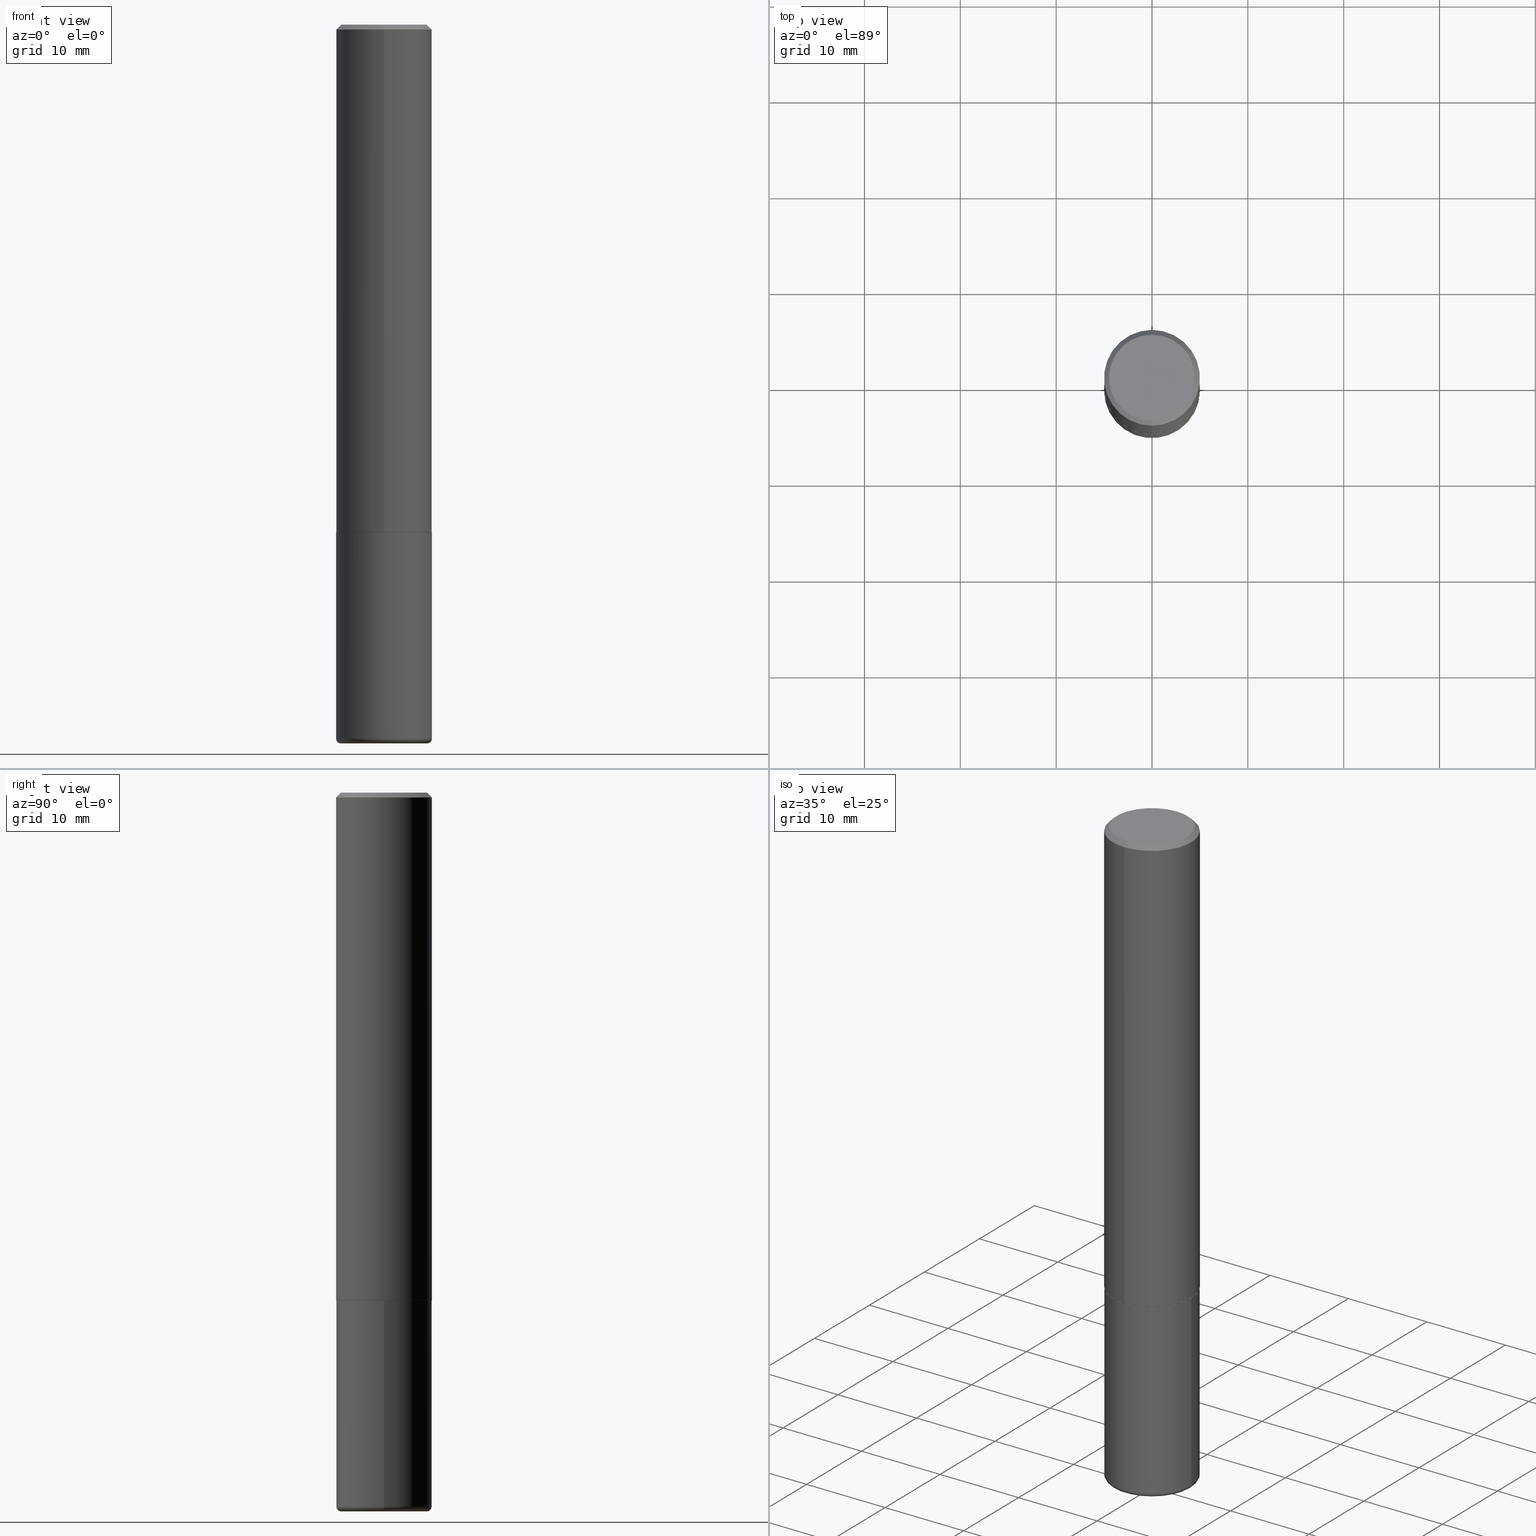
[diagram: canonical four-view strip — front | top / right | iso, engineering-drawing reading convention]
A machine part, canonical four-view strip (front | top / right | iso — engineering-drawing reading convention). The complete STEP part file that produces these views, byte-faithful:
ISO-10303-21;
HEADER;
FILE_DESCRIPTION (( 'STEP AP203' ),
    '1' );
FILE_NAME ('45174.STEP',
    '2024-03-04T15:38:00',
    ( '' ),
    ( '' ),
    'SwSTEP 2.0',
    'SolidWorks 2023',
    '' );
FILE_SCHEMA (( 'CONFIG_CONTROL_DESIGN' ));
ENDSEC;

DATA;
#1 = ORIENTED_EDGE ( 'NONE', *, *, #311, .F. ) ;
#2 = CARTESIAN_POINT ( 'NONE',  ( -1.350489030861325429E-15, -0.1968500000000000805, -0.01999999999999935510 ) ) ;
#3 = APPROVAL ( #12, 'UNSPECIFIED' ) ;
#4 = VERTEX_POINT ( 'NONE', #365 ) ;
#5 = DIRECTION ( 'NONE',  ( -1.000000000000000000, 6.982962677686265922E-15, -4.876176775795935793E-29 ) ) ;
#6 = LINE ( 'NONE', #187, #206 ) ;
#7 = CC_DESIGN_SECURITY_CLASSIFICATION ( #395, ( #134 ) ) ;
#8 = ADVANCED_FACE ( 'NONE', ( #121 ), #314, .T. ) ;
#9 = CARTESIAN_POINT ( 'NONE',  ( 7.172804555421624566E-29, -1.024086391496083050E-14, -2.933100000000000041 ) ) ;
#10 = DIRECTION ( 'NONE',  ( -2.446539280306379378E-29, 3.489948358973923236E-15, 1.000000000000000000 ) ) ;
#11 = SECURITY_CLASSIFICATION_LEVEL ( 'unclassified' ) ;
#12 = APPROVAL_STATUS ( 'not_yet_approved' ) ;
#13 = AXIS2_PLACEMENT_3D ( 'NONE', #369, #85, #18 ) ;
#14 = AXIS2_PLACEMENT_3D ( 'NONE', #359, #40, #331 ) ;
#15 = ADVANCED_FACE ( 'NONE', ( #280 ), #24, .T. ) ;
#16 = FACE_OUTER_BOUND ( 'NONE', #391, .T. ) ;
#17 = APPROVAL_STATUS ( 'not_yet_approved' ) ;
#18 = DIRECTION ( 'NONE',  ( -6.982962677686265922E-15, -1.000000000000000000, 3.489948358973923631E-15 ) ) ;
#19 = AXIS2_PLACEMENT_3D ( 'NONE', #196, #159, #123 ) ;
#20 = LOCAL_TIME ( 10, 38, 0.000000000000000000, #278 ) ;
#21 = VERTEX_POINT ( 'NONE', #232 ) ;
#22 = DIRECTION ( 'NONE',  ( 1.000000000000000000, -6.982962677686269866E-15, 0.000000000000000000 ) ) ;
#23 = PLANE ( 'NONE',  #211 ) ;
#24 = TOROIDAL_SURFACE ( 'NONE', #259, 0.1771500000000000019, 0.01969999999999987733 ) ;
#25 = FACE_OUTER_BOUND ( 'NONE', #65, .T. ) ;
#26 = AXIS2_PLACEMENT_3D ( 'NONE', #133, #397, #76 ) ;
#27 = ORIENTED_EDGE ( 'NONE', *, *, #324, .T. ) ;
#28 = CARTESIAN_POINT ( 'NONE',  ( 1.391597947986207069E-15, 0.1958499999999927244, -2.086700000000000887 ) ) ;
#29 = ORIENTED_EDGE ( 'NONE', *, *, #80, .F. ) ;
#30 = DIRECTION ( 'NONE',  ( -6.982962677686265922E-15, -1.000000000000000000, 4.163344669033669323E-15 ) ) ;
#31 = ORIENTED_EDGE ( 'NONE', *, *, #66, .F. ) ;
#32 = DIRECTION ( 'NONE',  ( -2.446539280306379098E-29, 3.489948358973923236E-15, 1.000000000000000000 ) ) ;
#33 = AXIS2_PLACEMENT_3D ( 'NONE', #180, #300, #265 ) ;
#34 = ORIENTED_EDGE ( 'NONE', *, *, #418, .F. ) ;
#35 =( NAMED_UNIT ( * ) SI_UNIT ( $, .STERADIAN. ) SOLID_ANGLE_UNIT ( ) );
#36 = ORIENTED_EDGE ( 'NONE', *, *, #48, .T. ) ;
#37 = DIRECTION ( 'NONE',  ( 1.000000000000000000, -6.982962677686269866E-15, 0.000000000000000000 ) ) ;
#38 = ADVANCED_FACE ( 'NONE', ( #16 ), #83, .T. ) ;
#39 = LINE ( 'NONE', #247, #155 ) ;
#40 = DIRECTION ( 'NONE',  ( 0.000000000000000000, 0.000000000000000000, 1.000000000000000000 ) ) ;
#41 = CIRCLE ( 'NONE', #217, 0.1968500000000000250 ) ;
#42 = DIRECTION ( 'NONE',  ( -6.982962677686265922E-15, -1.000000000000000000, 3.489948358973923631E-15 ) ) ;
#43 = CC_DESIGN_APPROVAL ( #3, ( #395 ) ) ;
#44 = DIRECTION ( 'NONE',  ( -6.982962677686266711E-15, -1.000000000000000000, 3.491481338843145583E-15 ) ) ;
#45 = PERSON_AND_ORGANIZATION ( #337, #400 ) ;
#46 = DATE_AND_TIME ( #184, #113 ) ;
#47 = CARTESIAN_POINT ( 'NONE',  ( 0.000000000000000000, 0.000000000000000000, 0.000000000000000000 ) ) ;
#48 = EDGE_CURVE ( 'NONE', #199, #67, #403, .T. ) ;
#49 = PERSON_AND_ORGANIZATION_ROLE ( 'creator' ) ;
#50 = FACE_OUTER_BOUND ( 'NONE', #266, .T. ) ;
#51 = COORDINATED_UNIVERSAL_TIME_OFFSET ( 5, 0, .BEHIND. ) ;
#52 = ORIENTED_EDGE ( 'NONE', *, *, #281, .F. ) ;
#53 = APPLICATION_CONTEXT ( 'configuration controlled 3d designs of mechanical parts and assemblies' ) ;
#54 = CC_DESIGN_APPROVAL ( #191, ( #285 ) ) ;
#55 = CARTESIAN_POINT ( 'NONE',  ( 0.1968499999999999417, -1.161546011806337053E-14, -2.933100000000000041 ) ) ;
#56 = DIRECTION ( 'NONE',  ( -1.000000000000000000, 6.982962677686265922E-15, -4.876176775795935793E-29 ) ) ;
#57 = FACE_OUTER_BOUND ( 'NONE', #338, .T. ) ;
#58 = EDGE_CURVE ( 'NONE', #390, #296, #402, .T. ) ;
#59 = ORIENTED_EDGE ( 'NONE', *, *, #242, .F. ) ;
#60 = APPLICATION_CONTEXT ( 'configuration controlled 3d designs of mechanical parts and assemblies' ) ;
#61 = PLANE ( 'NONE',  #118 ) ;
#62 = CIRCLE ( 'NONE', #150, 0.1768499999999997019 ) ;
#63 = ORIENTED_EDGE ( 'NONE', *, *, #302, .F. ) ;
#64 = CARTESIAN_POINT ( 'NONE',  ( -1.367613240424804121E-15, -0.1958500000000072960, -2.086699999999999555 ) ) ;
#65 = EDGE_LOOP ( 'NONE', ( #101, #229, #332, #293 ) ) ;
#66 = EDGE_CURVE ( 'NONE', #135, #358, #305, .T. ) ;
#67 = VERTEX_POINT ( 'NONE', #237 ) ;
#68 = CC_DESIGN_PERSON_AND_ORGANIZATION_ASSIGNMENT ( #282, #308, ( #134 ) ) ;
#69 = DIMENSIONAL_EXPONENTS ( 1.000000000000000000, 0.000000000000000000, 0.000000000000000000, 0.000000000000000000, 0.000000000000000000, 0.000000000000000000, 0.000000000000000000 ) ;
#70 = DIRECTION ( 'NONE',  ( 2.438088387897960049E-29, -3.491481338843145188E-15, -1.000000000000000000 ) ) ;
#71 = CONICAL_SURFACE ( 'NONE', #315, 0.1958499999999999963, 0.7853981633974141952 ) ;
#72 = AXIS2_PLACEMENT_3D ( 'NONE', #295, #355, #384 ) ;
#73 = VERTEX_POINT ( 'NONE', #88 ) ;
#74 = DIRECTION ( 'NONE',  ( -6.982962677686265922E-15, -1.000000000000000000, 3.489948358973923236E-15 ) ) ;
#75 = CARTESIAN_POINT ( 'NONE',  ( 1.374596203102542003E-15, 0.1968499999999999417, -0.02000000000000072900 ) ) ;
#76 = DIRECTION ( 'NONE',  ( -6.982962677686265922E-15, -1.000000000000000000, 4.163344669033669323E-15 ) ) ;
#77 = FACE_OUTER_BOUND ( 'NONE', #202, .T. ) ;
#78 = ORIENTED_EDGE ( 'NONE', *, *, #408, .T. ) ;
#79 = VECTOR ( 'NONE', #417, 39.37007874015748854 ) ;
#80 = EDGE_CURVE ( 'NONE', #199, #21, #223, .T. ) ;
#81 = CC_DESIGN_PERSON_AND_ORGANIZATION_ASSIGNMENT ( #153, #119, ( #395 ) ) ;
#82 = APPLICATION_PROTOCOL_DEFINITION ( 'international standard', 'config_control_design', 1994, #60 ) ;
#83 = CONICAL_SURFACE ( 'NONE', #319, 0.1968500000000000250, 0.7853981633974471688 ) ;
#84 = LOCAL_TIME ( 10, 38, 0.000000000000000000, #115 ) ;
#85 = DIRECTION ( 'NONE',  ( -2.446539280306379098E-29, 3.489948358973923236E-15, 1.000000000000000000 ) ) ;
#86 = ADVANCED_FACE ( 'NONE', ( #145 ), #313, .T. ) ;
#87 = PERSON_AND_ORGANIZATION_ROLE ( 'creator' ) ;
#88 = CARTESIAN_POINT ( 'NONE',  ( 0.1968500000000000250, -8.660270312866532536E-15, -2.086699999999999999 ) ) ;
#89 = DIRECTION ( 'NONE',  ( -6.982962677686265133E-15, -1.000000000000000000, 3.491137977679279424E-15 ) ) ;
#90 = CIRCLE ( 'NONE', #309, 0.1968500000000000250 ) ;
#91 = DIRECTION ( 'NONE',  ( 1.000000000000000000, -6.982962677686266711E-15, 4.876176775795935793E-29 ) ) ;
#92 = EDGE_CURVE ( 'NONE', #4, #73, #41, .T. ) ;
#93 = DIRECTION ( 'NONE',  ( -2.446539280306379098E-29, 3.489948358973923236E-15, 1.000000000000000000 ) ) ;
#94 = DIRECTION ( 'NONE',  ( -2.445468806185136877E-29, 3.491481338843145188E-15, 1.000000000000000000 ) ) ;
#95 = ORIENTED_EDGE ( 'NONE', *, *, #129, .F. ) ;
#96 = CARTESIAN_POINT ( 'NONE',  ( -0.1771500000000000019, -8.946540090277048352E-15, -2.952799999999999869 ) ) ;
#97 = EDGE_CURVE ( 'NONE', #164, #73, #39, .T. ) ;
#98 = ORIENTED_EDGE ( 'NONE', *, *, #294, .T. ) ;
#99 = MECHANICAL_CONTEXT ( 'NONE', #53, 'mechanical' ) ;
#100 = APPROVAL ( #17, 'UNSPECIFIED' ) ;
#101 = ORIENTED_EDGE ( 'NONE', *, *, #173, .F. ) ;
#102 = CARTESIAN_POINT ( 'NONE',  ( 5.102959757866523939E-29, -7.285674109763990928E-15, -2.086699999999999999 ) ) ;
#103 = EDGE_LOOP ( 'NONE', ( #59, #416 ) ) ;
#104 = DIRECTION ( 'NONE',  ( -6.982962677686265922E-15, -1.000000000000000000, 3.489948358973923236E-15 ) ) ;
#105 = VECTOR ( 'NONE', #10, 39.37007874015748143 ) ;
#106 = AXIS2_PLACEMENT_3D ( 'NONE', #9, #262, #37 ) ;
#107 = ORIENTED_EDGE ( 'NONE', *, *, #219, .T. ) ;
#108 = DIRECTION ( 'NONE',  ( 6.982962677686265133E-15, 1.000000000000000000, -3.491137977679279424E-15 ) ) ;
#109 = CARTESIAN_POINT ( 'NONE',  ( 1.398703375343784412E-15, 0.1968499999999930583, -2.085700000000000554 ) ) ;
#110 = DIRECTION ( 'NONE',  ( 1.000000000000000000, -6.982962677686272233E-15, 0.000000000000000000 ) ) ;
#111 = CALENDAR_DATE ( 2024, 4, 3 ) ;
#112 = ADVANCED_FACE ( 'NONE', ( #50 ), #132, .T. ) ;
#113 = LOCAL_TIME ( 10, 38, 0.000000000000000000, #51 ) ;
#114 = EDGE_CURVE ( 'NONE', #360, #358, #6, .T. ) ;
#115 = COORDINATED_UNIVERSAL_TIME_OFFSET ( 5, 0, .BEHIND. ) ;
#116 = CARTESIAN_POINT ( 'NONE',  ( 5.102959757866523939E-29, -7.285674109763990928E-15, -2.086699999999999999 ) ) ;
#117 = DESIGN_CONTEXT ( 'detailed design', #60, 'design' ) ;
#118 = AXIS2_PLACEMENT_3D ( 'NONE', #130, #357, #56 ) ;
#119 = PERSON_AND_ORGANIZATION_ROLE ( 'classification_officer' ) ;
#120 = CC_DESIGN_PERSON_AND_ORGANIZATION_ASSIGNMENT ( #45, #49, ( #134 ) ) ;
#121 = FACE_OUTER_BOUND ( 'NONE', #413, .T. ) ;
#122 = CARTESIAN_POINT ( 'NONE',  ( 7.172804555421624566E-29, -1.024086391496083050E-14, -2.933100000000000041 ) ) ;
#123 = DIRECTION ( 'NONE',  ( 6.982962677686265922E-15, 1.000000000000000000, -3.489948358973923236E-15 ) ) ;
#124 = ADVANCED_FACE ( 'NONE', ( #77 ), #343, .T. ) ;
#125 = CC_DESIGN_APPROVAL ( #100, ( #134 ) ) ;
#126 = FACE_OUTER_BOUND ( 'NONE', #271, .T. ) ;
#127 = DIRECTION ( 'NONE',  ( 6.982962677686265133E-15, 1.000000000000000000, -3.491137977679279424E-15 ) ) ;
#128 = ORIENTED_EDGE ( 'NONE', *, *, #173, .T. ) ;
#129 = EDGE_CURVE ( 'NONE', #358, #296, #274, .T. ) ;
#130 = CARTESIAN_POINT ( 'NONE',  ( 5.102959757866523939E-29, -7.285674109763990928E-15, -2.086699999999999999 ) ) ;
#131 = EDGE_LOOP ( 'NONE', ( #29, #36, #298, #264 ) ) ;
#132 = TOROIDAL_SURFACE ( 'NONE', #387, 0.1771500000000000019, 0.01969999999999987733 ) ;
#133 = CARTESIAN_POINT ( 'NONE',  ( 5.102746976935014410E-29, -7.278985292311911140E-15, -2.085699999999999665 ) ) ;
#134 = PRODUCT_DEFINITION_FORMATION_WITH_SPECIFIED_SOURCE ( 'ANY', '', #340, .NOT_KNOWN. ) ;
#135 = VERTEX_POINT ( 'NONE', #220 ) ;
#136 = ORIENTED_EDGE ( 'NONE', *, *, #114, .T. ) ;
#137 = DIRECTION ( 'NONE',  ( -2.446539280306379098E-29, 3.489948358973923236E-15, 1.000000000000000000 ) ) ;
#138 = ORIENTED_EDGE ( 'NONE', *, *, #219, .F. ) ;
#139 = ADVANCED_FACE ( 'NONE', ( #158 ), #216, .F. ) ;
#140 = LINE ( 'NONE', #268, #79 ) ;
#141 = AXIS2_PLACEMENT_3D ( 'NONE', #152, #157, #110 ) ;
#142 = CIRCLE ( 'NONE', #411, 0.01969999999999989468 ) ;
#143 = DIRECTION ( 'NONE',  ( 7.105427357601001859E-15, 1.000000000000000000, -3.491481338843145583E-15 ) ) ;
#144 = DIRECTION ( 'NONE',  ( 1.000000000000000000, -6.982962677686267499E-15, 0.000000000000000000 ) ) ;
#145 = FACE_OUTER_BOUND ( 'NONE', #377, .T. ) ;
#146 = DATE_TIME_ROLE ( 'classification_date' ) ;
#147 = ADVANCED_FACE ( 'NONE', ( #381 ), #289, .T. ) ;
#148 = APPROVAL_DATE_TIME ( #182, #191 ) ;
#149 = LOCAL_TIME ( 10, 38, 0.000000000000000000, #243 ) ;
#150 = AXIS2_PLACEMENT_3D ( 'NONE', #367, #170, #74 ) ;
#151 = APPROVAL_DATE_TIME ( #46, #100 ) ;
#152 = CARTESIAN_POINT ( 'NONE',  ( 7.220980290903470182E-29, -1.030964609733603853E-14, -2.952799999999999869 ) ) ;
#153 = PERSON_AND_ORGANIZATION ( #337, #400 ) ;
#154 = CARTESIAN_POINT ( 'NONE',  ( 7.172804555421624566E-29, -1.024086391496083050E-14, -2.933100000000000041 ) ) ;
#155 = VECTOR ( 'NONE', #346, 39.37007874015748143 ) ;
#156 = VECTOR ( 'NONE', #250, 39.37007874015748143 ) ;
#157 = DIRECTION ( 'NONE',  ( -2.445468806185136597E-29, 3.491481338843145583E-15, 1.000000000000000000 ) ) ;
#158 = FACE_OUTER_BOUND ( 'NONE', #291, .T. ) ;
#159 = DIRECTION ( 'NONE',  ( 2.446539280306378818E-29, -3.489948358973923236E-15, -1.000000000000000000 ) ) ;
#160 = CC_DESIGN_PERSON_AND_ORGANIZATION_ASSIGNMENT ( #342, #186, ( #340 ) ) ;
#161 = AXIS2_PLACEMENT_3D ( 'NONE', #253, #316, #383 ) ;
#162 = CIRCLE ( 'NONE', #240, 0.1968500000000000250 ) ;
#163 = DIRECTION ( 'NONE',  ( -6.982962677686265922E-15, -1.000000000000000000, 3.489948358973923236E-15 ) ) ;
#164 = VERTEX_POINT ( 'NONE', #55 ) ;
#165 = CARTESIAN_POINT ( 'NONE',  ( 0.000000000000000000, 0.000000000000000000, 0.000000000000000000 ) ) ;
#166 = ORIENTED_EDGE ( 'NONE', *, *, #66, .T. ) ;
#167 = DIRECTION ( 'NONE',  ( -6.982962677686265922E-15, -1.000000000000000000, 4.184602492209747448E-15 ) ) ;
#168 = ORIENTED_EDGE ( 'NONE', *, *, #129, .T. ) ;
#169 = CLOSED_SHELL ( 'NONE', ( #215, #86, #38, #147, #8, #124, #233, #139 ) ) ;
#170 = DIRECTION ( 'NONE',  ( -2.446539280306379098E-29, 3.489948358973923236E-15, 1.000000000000000000 ) ) ;
#171 = ORIENTED_EDGE ( 'NONE', *, *, #418, .T. ) ;
#172 = LENGTH_MEASURE_WITH_UNIT ( LENGTH_MEASURE( 0.02539999999999999897 ), #392 );
#173 = EDGE_CURVE ( 'NONE', #21, #4, #288, .T. ) ;
#174 = ORIENTED_EDGE ( 'NONE', *, *, #281, .T. ) ;
#175 = CARTESIAN_POINT ( 'NONE',  ( 1.304766576325678113E-15, 0.1768499999999997019, -3.144040879772800215E-16 ) ) ;
#176 = APPLICATION_PROTOCOL_DEFINITION ( 'international standard', 'config_control_design', 1994, #53 ) ;
#177 = APPROVAL_PERSON_ORGANIZATION ( #241, #191, #404 ) ;
#178 = DIRECTION ( 'NONE',  ( 4.937700262164541731E-15, 0.7071067811865442421, -0.7071067811865507924 ) ) ;
#179 = ADVANCED_FACE ( 'NONE', ( #57 ), #410, .T. ) ;
#180 = CARTESIAN_POINT ( 'NONE',  ( 5.105193516215321505E-29, -7.282475240670885995E-15, -2.086699999999999999 ) ) ;
#181 = CC_DESIGN_DATE_AND_TIME_ASSIGNMENT ( #374, #146, ( #395 ) ) ;
#182 = DATE_AND_TIME ( #312, #84 ) ;
#183 = CLOSED_SHELL ( 'NONE', ( #179, #112, #249, #227, #15, #363 ) ) ;
#184 = CALENDAR_DATE ( 2024, 4, 3 ) ;
#185 = EDGE_LOOP ( 'NONE', ( #354, #349, #197, #345 ) ) ;
#186 = PERSON_AND_ORGANIZATION_ROLE ( 'design_owner' ) ;
#187 = CARTESIAN_POINT ( 'NONE',  ( -1.350489030861325429E-15, -0.1968500000000000805, -0.01999999999999935510 ) ) ;
#188 = ORIENTED_EDGE ( 'NONE', *, *, #242, .T. ) ;
#189 = AXIS2_PLACEMENT_3D ( 'NONE', #412, #325, #30 ) ;
#190 = DIRECTION ( 'NONE',  ( 5.024295867787889629E-15, 0.7071067811865257013, 0.7071067811865691111 ) ) ;
#191 = APPROVAL ( #376, 'UNSPECIFIED' ) ;
#192 = CARTESIAN_POINT ( 'NONE',  ( 1.374596203102542003E-15, 0.1968499999999999417, -0.02000000000000072900 ) ) ;
#193 = CARTESIAN_POINT ( 'NONE',  ( 5.105193516215321505E-29, -7.282475240670885995E-15, -2.086699999999999999 ) ) ;
#194 = VERTEX_POINT ( 'NONE', #353 ) ;
#195 = CIRCLE ( 'NONE', #106, 0.1968499999999999694 ) ;
#196 = CARTESIAN_POINT ( 'NONE',  ( 1.234936949548814026E-15, 0.1768499999999997019, -4.658007276309087683E-16 ) ) ;
#197 = ORIENTED_EDGE ( 'NONE', *, *, #58, .T. ) ;
#198 = CARTESIAN_POINT ( 'NONE',  ( 5.105193516215321505E-29, -7.282475240670884418E-15, -2.086699999999999999 ) ) ;
#199 = VERTEX_POINT ( 'NONE', #96 ) ;
#200 = ORIENTED_EDGE ( 'NONE', *, *, #347, .T. ) ;
#201 = CIRCLE ( 'NONE', #72, 0.1771500000000000019 ) ;
#202 = EDGE_LOOP ( 'NONE', ( #138, #394, #171, #226 ) ) ;
#203 = FACE_OUTER_BOUND ( 'NONE', #103, .T. ) ;
#204 = DIRECTION ( 'NONE',  ( -1.000000000000000000, 7.105427357600965571E-15, 0.000000000000000000 ) ) ;
#205 = DIRECTION ( 'NONE',  ( -2.446539280306379098E-29, 3.489948358973923236E-15, 1.000000000000000000 ) ) ;
#206 = VECTOR ( 'NONE', #366, 39.37007874015748143 ) ;
#207 = AXIS2_PLACEMENT_3D ( 'NONE', #327, #70, #5 ) ;
#208 = UNCERTAINTY_MEASURE_WITH_UNIT (LENGTH_MEASURE( 1.000000000000000082E-05 ), #389, 'distance_accuracy_value', 'NONE');
#209 = DIRECTION ( 'NONE',  ( 1.000000000000000000, -6.982962677686267499E-15, 0.000000000000000000 ) ) ;
#210 = APPROVAL_ROLE ( '' ) ;
#211 = AXIS2_PLACEMENT_3D ( 'NONE', #198, #224, #163 ) ;
#212 = CARTESIAN_POINT ( 'NONE',  ( -1.374596203102542397E-15, -0.1968500000000001360, 6.869963344640173229E-16 ) ) ;
#213 = COORDINATED_UNIVERSAL_TIME_OFFSET ( 5, 0, .BEHIND. ) ;
#214 = ORIENTED_EDGE ( 'NONE', *, *, #302, .T. ) ;
#215 = ADVANCED_FACE ( 'NONE', ( #126 ), #71, .T. ) ;
#216 = PLANE ( 'NONE',  #19 ) ;
#217 = AXIS2_PLACEMENT_3D ( 'NONE', #116, #335, #209 ) ;
#218 = CARTESIAN_POINT ( 'NONE',  ( 4.893078560612768951E-31, -6.979896717947859982E-17, -0.02000000000000004205 ) ) ;
#219 = EDGE_CURVE ( 'NONE', #194, #329, #414, .T. ) ;
#220 = CARTESIAN_POINT ( 'NONE',  ( -1.374596203102492502E-15, -0.1968500000000075467, -2.085699999999999221 ) ) ;
#221 = FACE_OUTER_BOUND ( 'NONE', #362, .T. ) ;
#222 = ORIENTED_EDGE ( 'NONE', *, *, #373, .F. ) ;
#223 = CIRCLE ( 'NONE', #339, 0.01969999999999989468 ) ;
#224 = DIRECTION ( 'NONE',  ( -2.446539280306378818E-29, 3.489948358973923236E-15, 1.000000000000000000 ) ) ;
#225 = ORIENTED_EDGE ( 'NONE', *, *, #276, .T. ) ;
#226 = ORIENTED_EDGE ( 'NONE', *, *, #276, .F. ) ;
#227 = ADVANCED_FACE ( 'NONE', ( #25 ), #351, .T. ) ;
#228 = DIRECTION ( 'NONE',  ( -2.445468806185136597E-29, 3.491481338843145583E-15, 1.000000000000000000 ) ) ;
#229 = ORIENTED_EDGE ( 'NONE', *, *, #334, .T. ) ;
#230 = AXIS2_PLACEMENT_3D ( 'NONE', #165, #290, #322 ) ;
#231 = DIRECTION ( 'NONE',  ( -6.982962677686265922E-15, -1.000000000000000000, 4.184602492209747448E-15 ) ) ;
#232 = CARTESIAN_POINT ( 'NONE',  ( -0.1968499999999999417, -8.842160539617071922E-15, -2.933100000000000041 ) ) ;
#233 = ADVANCED_FACE ( 'NONE', ( #254 ), #23, .F. ) ;
#234 = CARTESIAN_POINT ( 'NONE',  ( -0.1771500000000000019, -8.982137458561812020E-15, -2.933100000000000041 ) ) ;
#235 = CARTESIAN_POINT ( 'NONE',  ( 5.105193516215321505E-29, -7.282475240670885995E-15, -2.086699999999999999 ) ) ;
#236 = MANIFOLD_SOLID_BREP ( 'Body-Move/Copy2[2]', #169 ) ;
#237 = CARTESIAN_POINT ( 'NONE',  ( 0.1771500000000000019, -1.154667793568816250E-14, -2.952799999999999869 ) ) ;
#238 = APPROVAL_DATE_TIME ( #272, #3 ) ;
#239 = AXIS2_PLACEMENT_3D ( 'NONE', #47, #205, #42 ) ;
#240 = AXIS2_PLACEMENT_3D ( 'NONE', #270, #137, #333 ) ;
#241 = PERSON_AND_ORGANIZATION ( #337, #400 ) ;
#242 = EDGE_CURVE ( 'NONE', #67, #199, #201, .T. ) ;
#243 = COORDINATED_UNIVERSAL_TIME_OFFSET ( 5, 0, .BEHIND. ) ;
#244 = ORIENTED_EDGE ( 'NONE', *, *, #347, .F. ) ;
#245 = CIRCLE ( 'NONE', #330, 0.1958499999999999963 ) ;
#246 = DATE_AND_TIME ( #273, #149 ) ;
#247 = CARTESIAN_POINT ( 'NONE',  ( 0.1968499999999999694, -1.374596203102541411E-15, 9.598753983154298056E-30 ) ) ;
#248 = DIRECTION ( 'NONE',  ( 2.446539280306379098E-29, -3.489948358973923236E-15, -1.000000000000000000 ) ) ;
#249 = ADVANCED_FACE ( 'NONE', ( #221 ), #61, .F. ) ;
#250 = DIRECTION ( 'NONE',  ( -2.446539280306379378E-29, 3.489948358973923236E-15, 1.000000000000000000 ) ) ;
#251 = AXIS2_PLACEMENT_3D ( 'NONE', #257, #93, #89 ) ;
#252 = CIRCLE ( 'NONE', #320, 0.1968499999999999694 ) ;
#253 = CARTESIAN_POINT ( 'NONE',  ( 5.105193516215321505E-29, -7.282475240670885995E-15, -2.086699999999999999 ) ) ;
#254 = FACE_OUTER_BOUND ( 'NONE', #385, .T. ) ;
#255 = VERTEX_POINT ( 'NONE', #64 ) ;
#256 = ADVANCED_BREP_SHAPE_REPRESENTATION ( '45174', ( #380, #236, #14 ), #356 ) ;
#257 = CARTESIAN_POINT ( 'NONE',  ( 4.893078560612768951E-31, -6.979896717947859982E-17, -0.02000000000000004205 ) ) ;
#258 = ORIENTED_EDGE ( 'NONE', *, *, #80, .T. ) ;
#259 = AXIS2_PLACEMENT_3D ( 'NONE', #310, #406, #286 ) ;
#260 =( NAMED_UNIT ( * ) PLANE_ANGLE_UNIT ( ) SI_UNIT ( $, .RADIAN. ) );
#261 = ORIENTED_EDGE ( 'NONE', *, *, #92, .T. ) ;
#262 = DIRECTION ( 'NONE',  ( -2.445468806185136597E-29, 3.491481338843145583E-15, 1.000000000000000000 ) ) ;
#263 = PRODUCT_RELATED_PRODUCT_CATEGORY ( 'detail', '', ( #340 ) ) ;
#264 = ORIENTED_EDGE ( 'NONE', *, *, #334, .F. ) ;
#265 = DIRECTION ( 'NONE',  ( -6.982962677686265922E-15, -1.000000000000000000, 4.184602492209747448E-15 ) ) ;
#266 = EDGE_LOOP ( 'NONE', ( #188, #258, #52, #299 ) ) ;
#267 = CIRCLE ( 'NONE', #26, 0.1968500000000002748 ) ;
#268 = CARTESIAN_POINT ( 'NONE',  ( -1.367613240424804121E-15, -0.1958500000000072960, -2.086699999999999555 ) ) ;
#269 = ORIENTED_EDGE ( 'NONE', *, *, #368, .T. ) ;
#270 = CARTESIAN_POINT ( 'NONE',  ( 4.893078560612768951E-31, -6.979896717947859982E-17, -0.02000000000000004205 ) ) ;
#271 = EDGE_LOOP ( 'NONE', ( #200, #107, #415, #34 ) ) ;
#272 = DATE_AND_TIME ( #111, #20 ) ;
#273 = CALENDAR_DATE ( 2024, 4, 3 ) ;
#274 = CIRCLE ( 'NONE', #251, 0.1968500000000000250 ) ;
#275 = CIRCLE ( 'NONE', #189, 0.1968500000000002748 ) ;
#276 = EDGE_CURVE ( 'NONE', #329, #135, #275, .T. ) ;
#277 = PRODUCT_DEFINITION_SHAPE ( 'NONE', 'NONE',  #285 ) ;
#278 = COORDINATED_UNIVERSAL_TIME_OFFSET ( 5, 0, .BEHIND. ) ;
#279 = CC_DESIGN_PERSON_AND_ORGANIZATION_ASSIGNMENT ( #344, #87, ( #285 ) ) ;
#280 = FACE_OUTER_BOUND ( 'NONE', #131, .T. ) ;
#281 = EDGE_CURVE ( 'NONE', #164, #21, #252, .T. ) ;
#282 = PERSON_AND_ORGANIZATION ( #337, #400 ) ;
#283 = DIRECTION ( 'NONE',  ( -2.445468806185136597E-29, 3.491481338843145583E-15, 1.000000000000000000 ) ) ;
#284 = AXIS2_PLACEMENT_3D ( 'NONE', #386, #318, #91 ) ;
#285 = PRODUCT_DEFINITION ( 'UNKNOWN', '', #134, #117 ) ;
#286 = DIRECTION ( 'NONE',  ( 1.000000000000000000, -6.982962677686271444E-15, 4.883557194083114022E-29 ) ) ;
#287 = LINE ( 'NONE', #409, #156 ) ;
#288 = LINE ( 'NONE', #350, #393 ) ;
#289 = CONICAL_SURFACE ( 'NONE', #328, 0.1968500000000000250, 0.7853981633974471688 ) ;
#290 = DIRECTION ( 'NONE',  ( -2.445468806185136597E-29, 3.491481338843145583E-15, 1.000000000000000000 ) ) ;
#291 = EDGE_LOOP ( 'NONE', ( #269, #214 ) ) ;
#292 = DIRECTION ( 'NONE',  ( -2.446539280306379098E-29, 3.489948358973923236E-15, 1.000000000000000000 ) ) ;
#293 = ORIENTED_EDGE ( 'NONE', *, *, #92, .F. ) ;
#294 = EDGE_CURVE ( 'NONE', #329, #296, #287, .T. ) ;
#295 = CARTESIAN_POINT ( 'NONE',  ( 7.220980290903470182E-29, -1.030964609733603853E-14, -2.952799999999999869 ) ) ;
#296 = VERTEX_POINT ( 'NONE', #192 ) ;
#297 = DIRECTION ( 'NONE',  ( 1.000000000000000000, -6.982962677686266711E-15, 0.000000000000000000 ) ) ;
#298 = ORIENTED_EDGE ( 'NONE', *, *, #341, .T. ) ;
#299 = ORIENTED_EDGE ( 'NONE', *, *, #341, .F. ) ;
#300 = DIRECTION ( 'NONE',  ( -2.446539280306379098E-29, 3.489948358973923236E-15, 1.000000000000000000 ) ) ;
#301 = DIRECTION ( 'NONE',  ( 1.000000000000000000, -6.982962677686271444E-15, 4.883557194083114022E-29 ) ) ;
#302 = EDGE_CURVE ( 'NONE', #360, #390, #375, .T. ) ;
#303 = AXIS2_PLACEMENT_3D ( 'NONE', #317, #304, #104 ) ;
#304 = DIRECTION ( 'NONE',  ( -2.446539280306379098E-29, 3.489948358973923236E-15, 1.000000000000000000 ) ) ;
#305 = LINE ( 'NONE', #212, #105 ) ;
#306 = CALENDAR_DATE ( 2024, 4, 3 ) ;
#307 = PERSON_AND_ORGANIZATION ( #337, #400 ) ;
#308 = PERSON_AND_ORGANIZATION_ROLE ( 'design_supplier' ) ;
#309 = AXIS2_PLACEMENT_3D ( 'NONE', #102, #228, #144 ) ;
#310 = CARTESIAN_POINT ( 'NONE',  ( 7.172804555421624566E-29, -1.024086391496083050E-14, -2.933100000000000041 ) ) ;
#311 = EDGE_CURVE ( 'NONE', #194, #255, #388, .T. ) ;
#312 = CALENDAR_DATE ( 2024, 4, 3 ) ;
#313 = CYLINDRICAL_SURFACE ( 'NONE', #13, 0.1968500000000001360 ) ;
#314 = CYLINDRICAL_SURFACE ( 'NONE', #239, 0.1968500000000001360 ) ;
#315 = AXIS2_PLACEMENT_3D ( 'NONE', #193, #292, #167 ) ;
#316 = DIRECTION ( 'NONE',  ( -2.446539280306379098E-29, 3.489948358973923236E-15, 1.000000000000000000 ) ) ;
#317 = CARTESIAN_POINT ( 'NONE',  ( -7.407956516379856958E-45, 1.056732908226695147E-30, 3.027932793072572471E-16 ) ) ;
#318 = DIRECTION ( 'NONE',  ( -2.445468806185136597E-29, 3.491481338843145583E-15, 1.000000000000000000 ) ) ;
#319 = AXIS2_PLACEMENT_3D ( 'NONE', #398, #396, #108 ) ;
#320 = AXIS2_PLACEMENT_3D ( 'NONE', #122, #378, #22 ) ;
#321 = ORIENTED_EDGE ( 'NONE', *, *, #324, .F. ) ;
#322 = DIRECTION ( 'NONE',  ( 1.000000000000000000, -6.982962677686266711E-15, 4.876176775795935793E-29 ) ) ;
#323 = ORIENTED_EDGE ( 'NONE', *, *, #58, .F. ) ;
#324 = EDGE_CURVE ( 'NONE', #73, #4, #90, .T. ) ;
#325 = DIRECTION ( 'NONE',  ( -2.446539280306379098E-29, 3.489948358973923236E-15, 1.000000000000000000 ) ) ;
#326 = ORIENTED_EDGE ( 'NONE', *, *, #294, .F. ) ;
#327 = CARTESIAN_POINT ( 'NONE',  ( 7.220980290903470182E-29, -1.030964609733603853E-14, -2.952799999999999869 ) ) ;
#328 = AXIS2_PLACEMENT_3D ( 'NONE', #218, #248, #127 ) ;
#329 = VERTEX_POINT ( 'NONE', #109 ) ;
#330 = AXIS2_PLACEMENT_3D ( 'NONE', #235, #32, #231 ) ;
#331 = DIRECTION ( 'NONE',  ( 1.000000000000000000, 0.000000000000000000, 0.000000000000000000 ) ) ;
#332 = ORIENTED_EDGE ( 'NONE', *, *, #97, .T. ) ;
#333 = DIRECTION ( 'NONE',  ( -6.982962677686265133E-15, -1.000000000000000000, 3.491137977679279424E-15 ) ) ;
#334 = EDGE_CURVE ( 'NONE', #21, #164, #195, .T. ) ;
#335 = DIRECTION ( 'NONE',  ( -2.445468806185136597E-29, 3.491481338843145583E-15, 1.000000000000000000 ) ) ;
#336 = CARTESIAN_POINT ( 'NONE',  ( 0.1771500000000000019, -1.147789575331295131E-14, -2.933100000000000041 ) ) ;
#337 = PERSON ( 'UNSPECIFIED', 'UNSPECIFIED', 'UNSPECIFIED', ('UNSPECIFIED'), ('UNSPECIFIED'), ('UNSPECIFIED') ) ;
#338 = EDGE_LOOP ( 'NONE', ( #174, #128, #321, #407 ) ) ;
#339 = AXIS2_PLACEMENT_3D ( 'NONE', #234, #143, #204 ) ;
#340 = PRODUCT ( '45174', '45174', '', ( #99 ) ) ;
#341 = EDGE_CURVE ( 'NONE', #67, #164, #142, .T. ) ;
#342 = PERSON_AND_ORGANIZATION ( #337, #400 ) ;
#343 = CONICAL_SURFACE ( 'NONE', #161, 0.1958499999999999963, 0.7853981633974141952 ) ;
#344 = PERSON_AND_ORGANIZATION ( #337, #400 ) ;
#345 = ORIENTED_EDGE ( 'NONE', *, *, #373, .T. ) ;
#346 = DIRECTION ( 'NONE',  ( -2.445468806185136877E-29, 3.491481338843145188E-15, 1.000000000000000000 ) ) ;
#347 = EDGE_CURVE ( 'NONE', #255, #194, #245, .T. ) ;
#348 = PERSON_AND_ORGANIZATION ( #337, #400 ) ;
#349 = ORIENTED_EDGE ( 'NONE', *, *, #368, .F. ) ;
#350 = CARTESIAN_POINT ( 'NONE',  ( -0.1968499999999999694, 1.398703375343756999E-15, -9.682923725166782276E-30 ) ) ;
#351 = CYLINDRICAL_SURFACE ( 'NONE', #284, 0.1968499999999999694 ) ;
#352 = CC_DESIGN_DATE_AND_TIME_ASSIGNMENT ( #246, #401, ( #285 ) ) ;
#353 = CARTESIAN_POINT ( 'NONE',  ( 1.395150661665008954E-15, 0.1958499999999927244, -2.086700000000000887 ) ) ;
#354 = ORIENTED_EDGE ( 'NONE', *, *, #114, .F. ) ;
#355 = DIRECTION ( 'NONE',  ( -2.445468806185136597E-29, 3.491481338843145583E-15, 1.000000000000000000 ) ) ;
#356 =( GEOMETRIC_REPRESENTATION_CONTEXT ( 3 ) GLOBAL_UNCERTAINTY_ASSIGNED_CONTEXT ( ( #208 ) ) GLOBAL_UNIT_ASSIGNED_CONTEXT ( ( #389, #260, #35 ) ) REPRESENTATION_CONTEXT ( 'NONE', 'WORKASPACE' ) );
#357 = DIRECTION ( 'NONE',  ( 2.438088387897960049E-29, -3.491481338843145188E-15, -1.000000000000000000 ) ) ;
#358 = VERTEX_POINT ( 'NONE', #2 ) ;
#359 = CARTESIAN_POINT ( 'NONE',  ( 0.000000000000000000, 0.000000000000000000, 0.000000000000000000 ) ) ;
#360 = VERTEX_POINT ( 'NONE', #364 ) ;
#361 = PLANE ( 'NONE',  #207 ) ;
#362 = EDGE_LOOP ( 'NONE', ( #27, #261 ) ) ;
#363 = ADVANCED_FACE ( 'NONE', ( #203 ), #361, .T. ) ;
#364 = CARTESIAN_POINT ( 'NONE',  ( -1.281884050883609506E-15, -0.1768499999999997019, 9.199906465917945650E-16 ) ) ;
#365 = CARTESIAN_POINT ( 'NONE',  ( -0.1968500000000000250, -7.364565637018652926E-15, -2.086699999999999999 ) ) ;
#366 = DIRECTION ( 'NONE',  ( -4.851104656540957964E-15, -0.7071067811865491270, -0.7071067811865459074 ) ) ;
#367 = CARTESIAN_POINT ( 'NONE',  ( -7.407956516379856958E-45, 1.056732908226695147E-30, 3.027932793072572471E-16 ) ) ;
#368 = EDGE_CURVE ( 'NONE', #390, #360, #62, .T. ) ;
#369 = CARTESIAN_POINT ( 'NONE',  ( 0.000000000000000000, 0.000000000000000000, 0.000000000000000000 ) ) ;
#370 = LOCAL_TIME ( 10, 38, 0.000000000000000000, #213 ) ;
#371 = SHAPE_DEFINITION_REPRESENTATION ( #277, #256 ) ;
#372 = APPROVAL_ROLE ( '' ) ;
#373 = EDGE_CURVE ( 'NONE', #296, #358, #162, .T. ) ;
#374 = DATE_AND_TIME ( #306, #370 ) ;
#375 = CIRCLE ( 'NONE', #303, 0.1768499999999997019 ) ;
#376 = APPROVAL_STATUS ( 'not_yet_approved' ) ;
#377 = EDGE_LOOP ( 'NONE', ( #78, #98, #95, #31 ) ) ;
#378 = DIRECTION ( 'NONE',  ( -2.445468806185136597E-29, 3.491481338843145583E-15, 1.000000000000000000 ) ) ;
#379 = VECTOR ( 'NONE', #190, 39.37007874015748854 ) ;
#380 = MANIFOLD_SOLID_BREP ( 'Body-Move/Copy2[1]', #183 ) ;
#381 = FACE_OUTER_BOUND ( 'NONE', #185, .T. ) ;
#382 = APPROVAL_PERSON_ORGANIZATION ( #307, #100, #372 ) ;
#383 = DIRECTION ( 'NONE',  ( -6.982962677686265922E-15, -1.000000000000000000, 4.184602492209747448E-15 ) ) ;
#384 = DIRECTION ( 'NONE',  ( 1.000000000000000000, -6.982962677686272233E-15, 0.000000000000000000 ) ) ;
#385 = EDGE_LOOP ( 'NONE', ( #244, #1 ) ) ;
#386 = CARTESIAN_POINT ( 'NONE',  ( 0.000000000000000000, 0.000000000000000000, 0.000000000000000000 ) ) ;
#387 = AXIS2_PLACEMENT_3D ( 'NONE', #154, #283, #301 ) ;
#388 = CIRCLE ( 'NONE', #33, 0.1958499999999999963 ) ;
#389 =( CONVERSION_BASED_UNIT ( 'INCH', #172 ) LENGTH_UNIT ( ) NAMED_UNIT ( #69 ) );
#390 = VERTEX_POINT ( 'NONE', #175 ) ;
#391 = EDGE_LOOP ( 'NONE', ( #63, #136, #168, #323 ) ) ;
#392 =( LENGTH_UNIT ( ) NAMED_UNIT ( * ) SI_UNIT ( $, .METRE. ) );
#393 = VECTOR ( 'NONE', #94, 39.37007874015748143 ) ;
#394 = ORIENTED_EDGE ( 'NONE', *, *, #311, .T. ) ;
#395 = SECURITY_CLASSIFICATION ( '', '', #11 ) ;
#396 = DIRECTION ( 'NONE',  ( 2.446539280306379098E-29, -3.489948358973923236E-15, -1.000000000000000000 ) ) ;
#397 = DIRECTION ( 'NONE',  ( -2.446539280306379098E-29, 3.489948358973923236E-15, 1.000000000000000000 ) ) ;
#398 = CARTESIAN_POINT ( 'NONE',  ( 4.893078560612768951E-31, -6.979896717947859982E-17, -0.02000000000000004205 ) ) ;
#399 = VECTOR ( 'NONE', #178, 39.37007874015748143 ) ;
#400 = ORGANIZATION ( 'UNSPECIFIED', 'UNSPECIFIED', '' ) ;
#401 = DATE_TIME_ROLE ( 'creation_date' ) ;
#402 = LINE ( 'NONE', #75, #399 ) ;
#403 = CIRCLE ( 'NONE', #141, 0.1771500000000000019 ) ;
#404 = APPROVAL_ROLE ( '' ) ;
#405 = APPROVAL_PERSON_ORGANIZATION ( #348, #3, #210 ) ;
#406 = DIRECTION ( 'NONE',  ( -2.445468806185136597E-29, 3.491481338843145583E-15, 1.000000000000000000 ) ) ;
#407 = ORIENTED_EDGE ( 'NONE', *, *, #97, .F. ) ;
#408 = EDGE_CURVE ( 'NONE', #135, #329, #267, .T. ) ;
#409 = CARTESIAN_POINT ( 'NONE',  ( 1.398703375343757985E-15, 0.1968500000000001360, -6.869963344640173229E-16 ) ) ;
#410 = CYLINDRICAL_SURFACE ( 'NONE', #230, 0.1968499999999999694 ) ;
#411 = AXIS2_PLACEMENT_3D ( 'NONE', #336, #44, #297 ) ;
#412 = CARTESIAN_POINT ( 'NONE',  ( 5.102746976935014410E-29, -7.278985292311911140E-15, -2.085699999999999665 ) ) ;
#413 = EDGE_LOOP ( 'NONE', ( #326, #225, #166, #222 ) ) ;
#414 = LINE ( 'NONE', #28, #379 ) ;
#415 = ORIENTED_EDGE ( 'NONE', *, *, #408, .F. ) ;
#416 = ORIENTED_EDGE ( 'NONE', *, *, #48, .F. ) ;
#417 = DIRECTION ( 'NONE',  ( -4.937700262164378437E-15, -0.7071067811865208164, 0.7071067811865739960 ) ) ;
#418 = EDGE_CURVE ( 'NONE', #255, #135, #140, .T. ) ;
ENDSEC;
END-ISO-10303-21;
